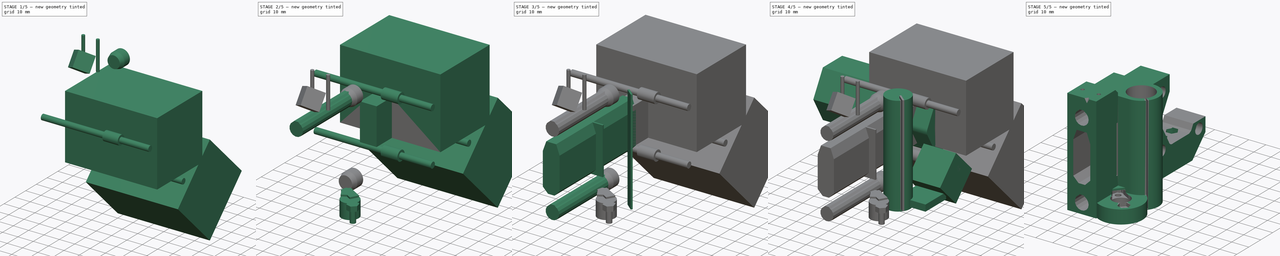
[diagram: build sequence overview — one tinted view per stage of 5, left to right]
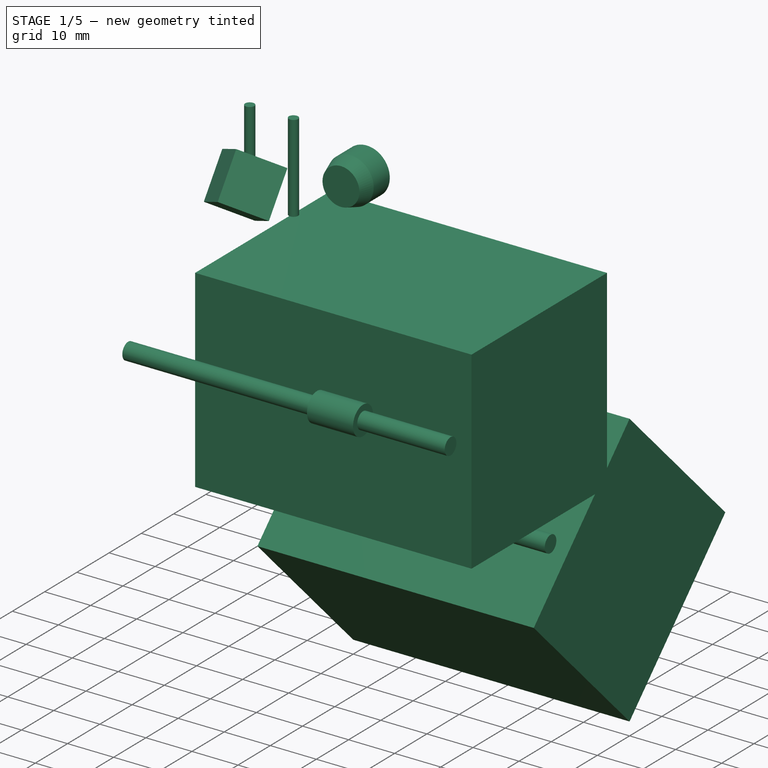
[diagram: stage 1 of 5 — iso view after this stage's code; geometry added in this stage tinted green]
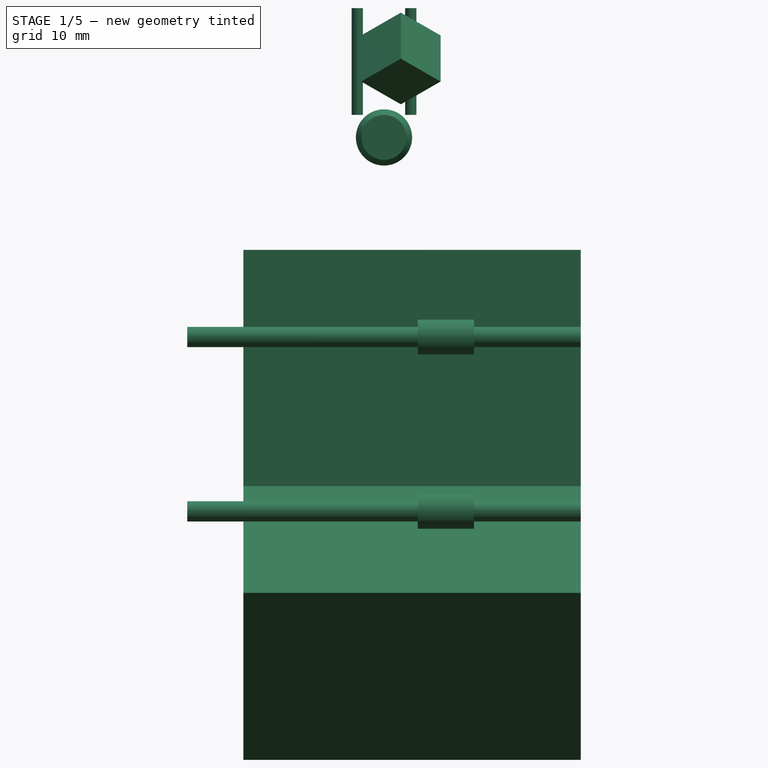
[diagram: stage 1 of 5 — front view after this stage's code; geometry added in this stage tinted green]
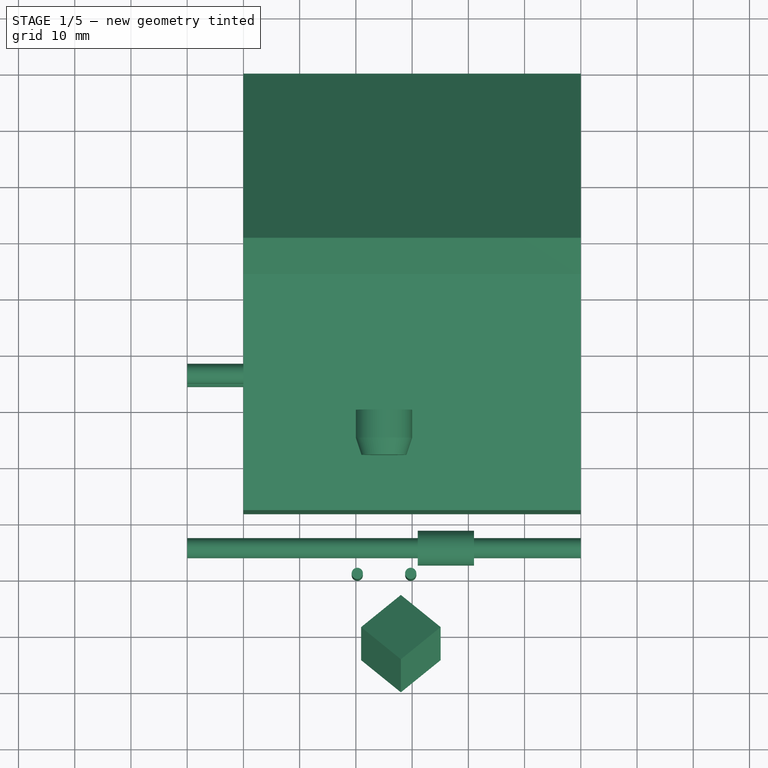
[diagram: stage 1 of 5 — top view after this stage's code; geometry added in this stage tinted green]
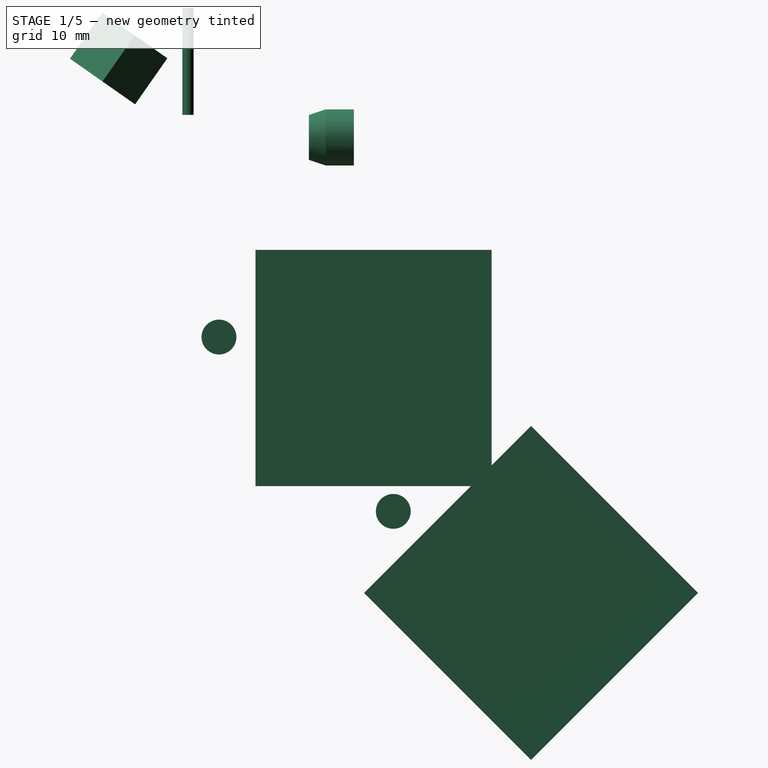
[diagram: stage 1 of 5 — right view after this stage's code; geometry added in this stage tinted green]
FCSTD DOCUMENT  (FreeCAD 0.19R)
Label: x-end-motor
License: All rights reserved
LicenseURL: http://en.wikipedia.org/wiki/All_rights_reserved
objects: Part::Box×26, Part::Cylinder×20, Part::Fuse×9, Part::MultiFuse×7, Part::Cut×6, Part::Prism×5, Sketcher::SketchObject×3, PartDesign::Pocket×3, Part::Cone×2, PartDesign::FeatureBase×1, PartDesign::Body×1
note: 86 computed .brp shape members not serialized (recipe doc carries the construction recipe); baked Part::Feature solids carry a one-line shape summary decoded from their .brp

FEATURE [Part::Cylinder] cylinder032
  Angle = 360
  AttacherType = Attacher::AttachEngine3D
  Height = 70
  Placement = pos=(20,-15.5,15.5) rot=(0.57735,0.57735,-0.57735;4.18879rad)
  Radius = 1.8
FEATURE [Part::Cylinder] cylinder033
  Angle = 360
  AttacherType = Attacher::AttachEngine3D
  Height = 10
  Placement = pos=(1,-15.5,15.5) rot=(0.57735,0.57735,-0.57735;4.18879rad)
  Radius = 3.1
FEATURE [Part::Cylinder] cylinder034
  Angle = 360
  AttacherType = Attacher::AttachEngine3D
  Height = 70
  Placement = pos=(20,15.5,-15.5) rot=(0.57735,0.57735,-0.57735;4.18879rad)
  Radius = 1.8
FEATURE [Part::Cylinder] cylinder035
  Angle = 360
  AttacherType = Attacher::AttachEngine3D
  Height = 10
  Placement = pos=(1,15.5,-15.5) rot=(0.57735,0.57735,-0.57735;4.18879rad)
  Radius = 3.1
FEATURE [Part::Cylinder] cylinder036
  Angle = 360
  AttacherType = Attacher::AttachEngine3D
  Height = 70
  Placement = pos=(20,15.5,15.5) rot=(0.57735,0.57735,-0.57735;4.18879rad)
  Radius = 1.8
FEATURE [Part::Cylinder] cylinder037
  Angle = 360
  AttacherType = Attacher::AttachEngine3D
  Height = 10
  Placement = pos=(1,15.5,15.5) rot=(0.57735,0.57735,-0.57735;4.18879rad)
  Radius = 3.1
FEATURE [Part::Box] cube049
  AttacherType = Attacher::AttachEngine3D
  Height = 42
  Length = 60
  Placement = pos=(-40,-9,-11) rot=(0,0,1;0rad)
  Width = 42
FEATURE [Part::Box] cube050
  AttacherType = Attacher::AttachEngine3D
  Height = 42
  Length = 60
  Placement = pos=(-40,40,-59.6985) rot=(1,0,0;0.785398rad)
  Width = 42
FEATURE [Part::Cylinder] cylinder038
  Angle = 360
  AttacherType = Attacher::AttachEngine3D
  Height = 19
  Placement = pos=(-4.75,0,0) rot=(0,0,1;0rad)
  Radius = 1
FEATURE [Part::Cylinder] cylinder039
  Angle = 360
  AttacherType = Attacher::AttachEngine3D
  Height = 19
  Placement = pos=(4.75,0,0) rot=(0,0,1;0rad)
  Radius = 1
FEATURE [Part::Fuse] Matrix_Union005
  Base = -> cylinder038
  Placement = pos=(-15,-21,55) rot=(0,0,1;0rad)
  Tool = -> cylinder039
FEATURE [Part::Box] cube051
  AttacherType = Attacher::AttachEngine3D
  Height = 10
  Length = 10
  Placement = pos=(-12,-42,65) rot=(-0.587481,0.243343,0.771784;0.985144rad)
  Width = 10
FEATURE [Part::Cylinder] cylinder040
  Angle = 360
  AttacherType = Attacher::AttachEngine3D
  Height = 5
  Placement = pos=(-15,8.5,6) rot=(1,0,0;1.5708rad)
  Radius = 5
FEATURE [Part::Cylinder] cylinder041
  Angle = 360
  AttacherType = Attacher::AttachEngine3D
  Height = 5
  Placement = pos=(-15,8.5,51) rot=(1,0,0;1.5708rad)
  Radius = 5
FEATURE [Part::Cone] cylinder042
  Angle = 360
  AttacherType = Attacher::AttachEngine3D
  Height = 3
  Placement = pos=(-15,3.5,6) rot=(1,0,0;1.5708rad)
  Radius1 = 5
  Radius2 = 4
FEATURE [Part::Cone] cylinder043
  Angle = 360
  AttacherType = Attacher::AttachEngine3D
  Height = 3
  Placement = pos=(-15,3.5,51) rot=(1,0,0;1.5708rad)
  Radius1 = 5
  Radius2 = 4
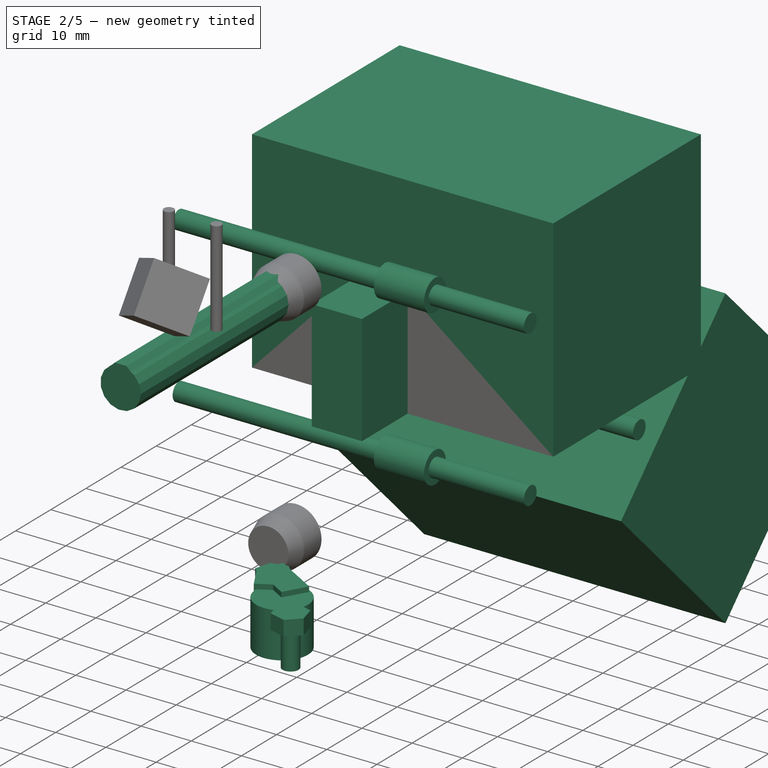
[diagram: stage 2 of 5 — iso view after this stage's code; geometry added in this stage tinted green]
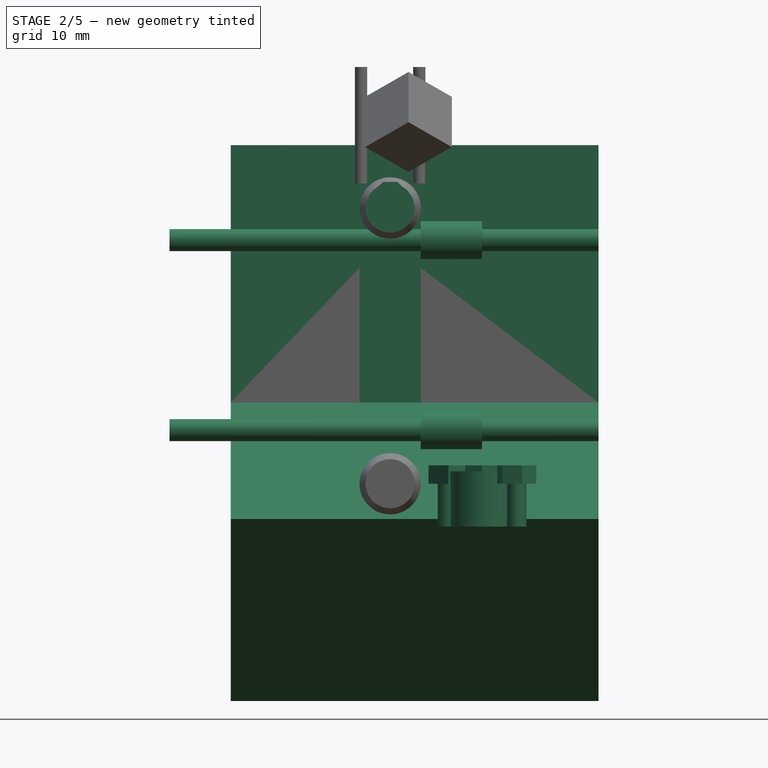
[diagram: stage 2 of 5 — front view after this stage's code; geometry added in this stage tinted green]
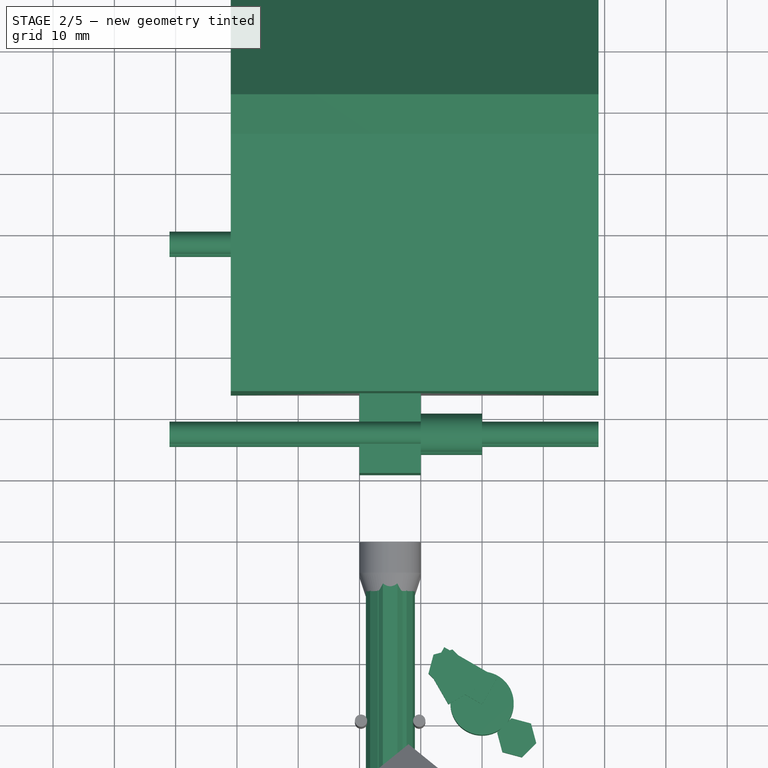
[diagram: stage 2 of 5 — top view after this stage's code; geometry added in this stage tinted green]
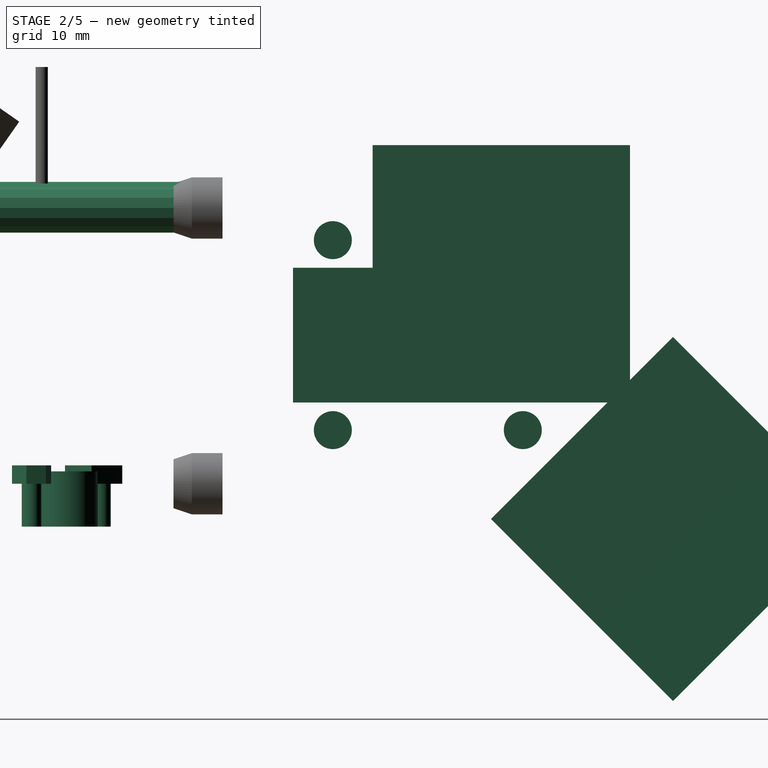
[diagram: stage 2 of 5 — right view after this stage's code; geometry added in this stage tinted green]
FEATURE [Part::Prism] prism007
  AttacherType = Attacher::AttachEngine3D
  Circumradius = 4.03601
  FirstAngle = 0
  Height = 50
  Polygon = 15
  SecondAngle = 0
FEATURE [Part::Box] cube044
  AttacherType = Attacher::AttachEngine3D
  Height = 50
  Length = 3.85
  Placement = pos=(0,-5.42411,0) rot=(0,0,1;0.785398rad)
  Width = 3.85
FEATURE [Part::Box] cube045
  AttacherType = Attacher::AttachEngine3D
  Height = 50
  Length = 7.7
  Placement = pos=(-3.85,-8.1,0) rot=(0,0,1;0rad)
  Width = 3.85
FEATURE [Part::Cut] difference010
  Base = -> cube044
  Tool = -> cube045
FEATURE [Part::Fuse] Group013
  Base = -> prism007
  Placement = pos=(-15,-41.5,51) rot=(-1,0,0;1.5708rad)
  Tool = -> difference010
FEATURE [Part::Cylinder] cylinder027
  Angle = 360
  AttacherType = Attacher::AttachEngine3D
  Height = 9.01
  Placement = pos=(0,-17,-1) rot=(0,0,1;0rad)
  Radius = 5.16233
FEATURE [Part::Cylinder] cylinder028
  Angle = 360
  AttacherType = Attacher::AttachEngine3D
  Height = 10
  Placement = pos=(5.65685,-22.6569,-1) rot=(0,0,1;3.92699rad)
  Radius = 1.6
FEATURE [Part::Cylinder] cylinder029
  Angle = 360
  AttacherType = Attacher::AttachEngine3D
  Height = 10
  Placement = pos=(-5.65685,-11.3431,-1) rot=(0,0,1;3.92699rad)
  Radius = 1.6
FEATURE [Part::Prism] prism008
  AttacherType = Attacher::AttachEngine3D
  Circumradius = 3.3
  FirstAngle = 0
  Height = 3
  Placement = pos=(5.65685,-22.6569,6) rot=(0,0,1;3.92699rad)
  Polygon = 6
  SecondAngle = 0
FEATURE [Part::Prism] prism009
  AttacherType = Attacher::AttachEngine3D
  Circumradius = 3.2
  FirstAngle = 0
  Height = 3
  Placement = pos=(-5.65685,-11.3431,6) rot=(0,0,-1;1.8326rad)
  Polygon = 6
  SecondAngle = 0
FEATURE [Part::Box] cube046
  AttacherType = Attacher::AttachEngine3D
  Height = 3
  Length = 5
  Placement = pos=(-5.5,-17.2,6) rot=(0,0,1;0.523599rad)
  Width = 5
FEATURE [Part::Box] cube047
  AttacherType = Attacher::AttachEngine3D
  Height = 3
  Length = 5
  Placement = pos=(0,-17.2,6) rot=(0,0,1;1.0472rad)
  Width = 10
FEATURE [Part::Box] cube048
  AttacherType = Attacher::AttachEngine3D
  Height = 22
  Length = 10
  Placement = pos=(-19,-22,-11) rot=(0,0,1;0rad)
  Width = 46
FEATURE [Part::Cylinder] cylinder030
  Angle = 360
  AttacherType = Attacher::AttachEngine3D
  Height = 70
  Placement = pos=(20,-15.5,-15.5) rot=(0.57735,0.57735,-0.57735;4.18879rad)
  Radius = 1.8
FEATURE [Part::Cylinder] cylinder031
  Angle = 360
  AttacherType = Attacher::AttachEngine3D
  Height = 10
  Placement = pos=(1,-15.5,-15.5) rot=(0.57735,0.57735,-0.57735;4.18879rad)
  Radius = 3.1
FEATURE [Part::MultiFuse] Matrix_Union004
  Placement = pos=(-1,42,30.25) rot=(0,0,1;0rad)
  Shapes = -> [cube048,cylinder030,cylinder031,cylinder032,cylinder033,cylinder034,cylinder035,cylinder036,cylinder037,cube049,cube050]
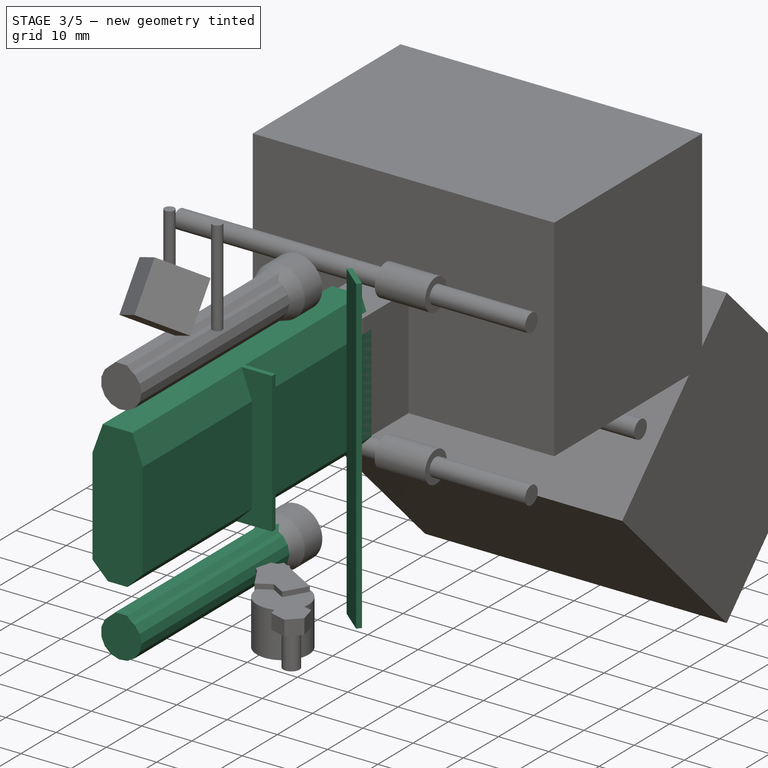
[diagram: stage 3 of 5 — iso view after this stage's code; geometry added in this stage tinted green]
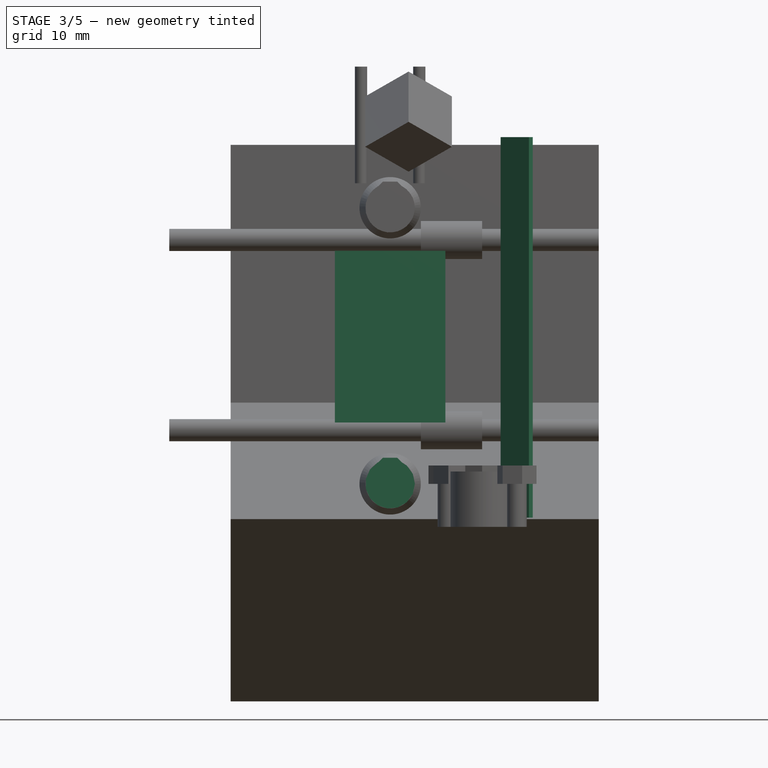
[diagram: stage 3 of 5 — front view after this stage's code; geometry added in this stage tinted green]
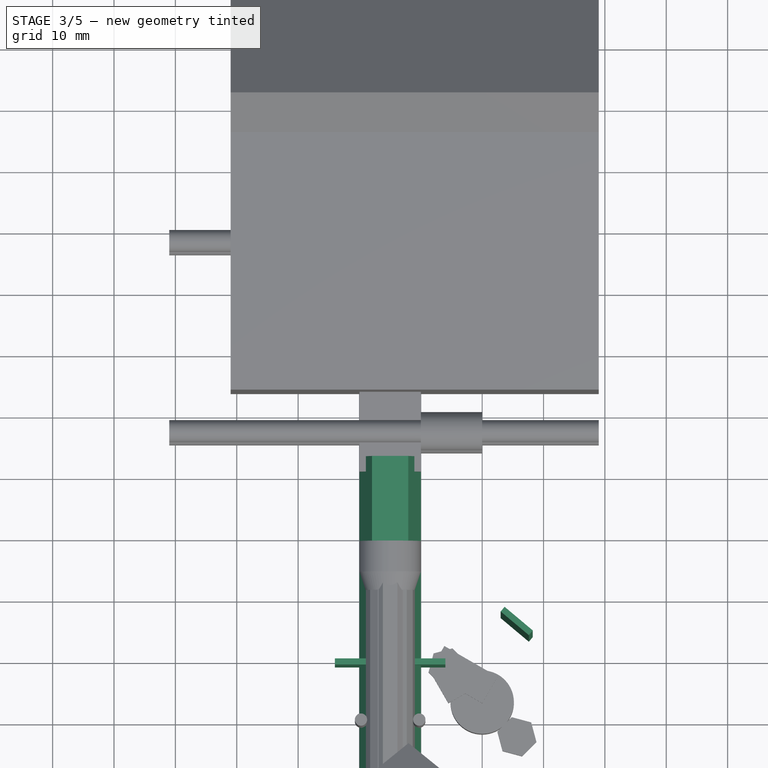
[diagram: stage 3 of 5 — top view after this stage's code; geometry added in this stage tinted green]
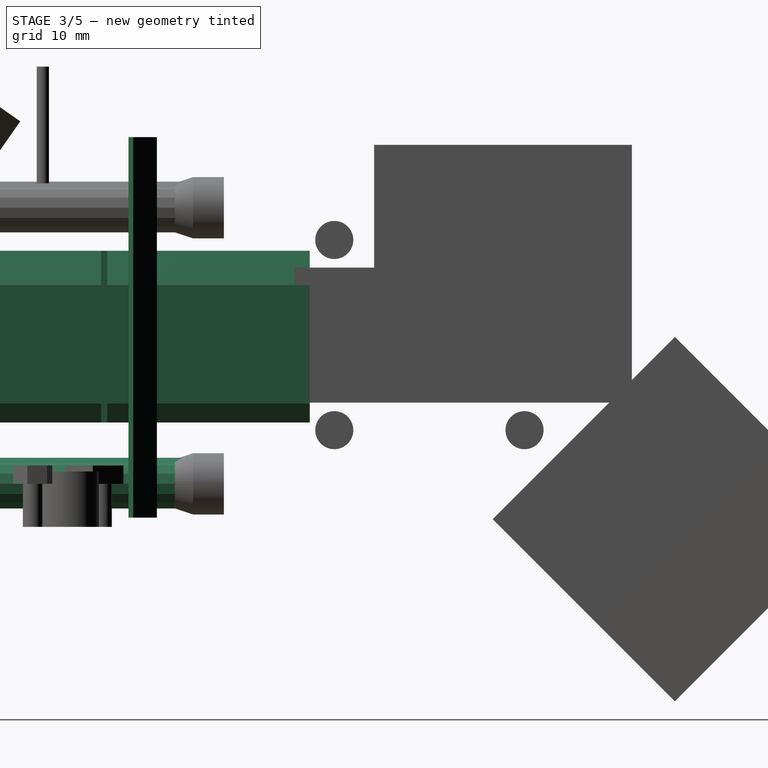
[diagram: stage 3 of 5 — right view after this stage's code; geometry added in this stage tinted green]
FEATURE [Part::Box] cube035
  AttacherType = Attacher::AttachEngine3D
  Height = 62
  Length = 6
  Placement = pos=(3.0109,-3.17915,0.5) rot=(0,0,-1;0.698132rad)
  Width = 1
FEATURE [Part::Box] cube036
  AttacherType = Attacher::AttachEngine3D
  Height = 28
  Length = 18
  Placement = pos=(-23,-11.5,16) rot=(0,0,1;0rad)
  Width = 1
FEATURE [Part::Box] cube037
  AttacherType = Attacher::AttachEngine3D
  Height = 28
  Length = 10
  Placement = pos=(-19,-42.5,16) rot=(0,0,1;0rad)
  Width = 65
FEATURE [Part::Box] cube038
  AttacherType = Attacher::AttachEngine3D
  Height = 28
  Length = 10
  Placement = pos=(-28.4867,-42.5,41.5544) rot=(0,1,0;0.349066rad)
  Width = 65
FEATURE [Part::Box] cube039
  AttacherType = Attacher::AttachEngine3D
  Height = 28
  Length = 10
  Placement = pos=(-8.91018,-42.5,38.1342) rot=(0,-1,0;0.349066rad)
  Width = 65
FEATURE [Part::Box] cube040
  AttacherType = Attacher::AttachEngine3D
  Height = 28
  Length = 10
  Placement = pos=(-27.435,-42.5,0.636039) rot=(0,1,0;0.785398rad)
  Width = 65
FEATURE [Part::Box] cube041
  AttacherType = Attacher::AttachEngine3D
  Height = 28
  Length = 10
  Placement = pos=(-7.63604,-42.5,-6.43503) rot=(0,-1,0;0.785398rad)
  Width = 65
FEATURE [Part::MultiFuse] union008
  Shapes = -> [cube038,cube039,cube040,cube041]
FEATURE [Part::Cut] difference008
  Base = -> cube037
  Tool = -> union008
FEATURE [Part::Fuse] Matrix_Union003
  Base = -> cube036
  Placement = pos=(-1,0,0) rot=(0,0,1;0rad)
  Tool = -> difference008
FEATURE [Part::Prism] prism006
  AttacherType = Attacher::AttachEngine3D
  Circumradius = 4.03601
  FirstAngle = 0
  Height = 50
  Polygon = 15
  SecondAngle = 0
FEATURE [Part::Box] cube042
  AttacherType = Attacher::AttachEngine3D
  Height = 50
  Length = 3.85
  Placement = pos=(0,-5.42411,0) rot=(0,0,1;0.785398rad)
  Width = 3.85
FEATURE [Part::Box] cube043
  AttacherType = Attacher::AttachEngine3D
  Height = 50
  Length = 7.7
  Placement = pos=(-3.85,-8.1,0) rot=(0,0,1;0rad)
  Width = 3.85
FEATURE [Part::Cut] difference009
  Base = -> cube042
  Tool = -> cube043
FEATURE [Part::Fuse] Group012
  Base = -> prism006
  Placement = pos=(-15,-41.5,6) rot=(-1,0,0;1.5708rad)
  Tool = -> difference009
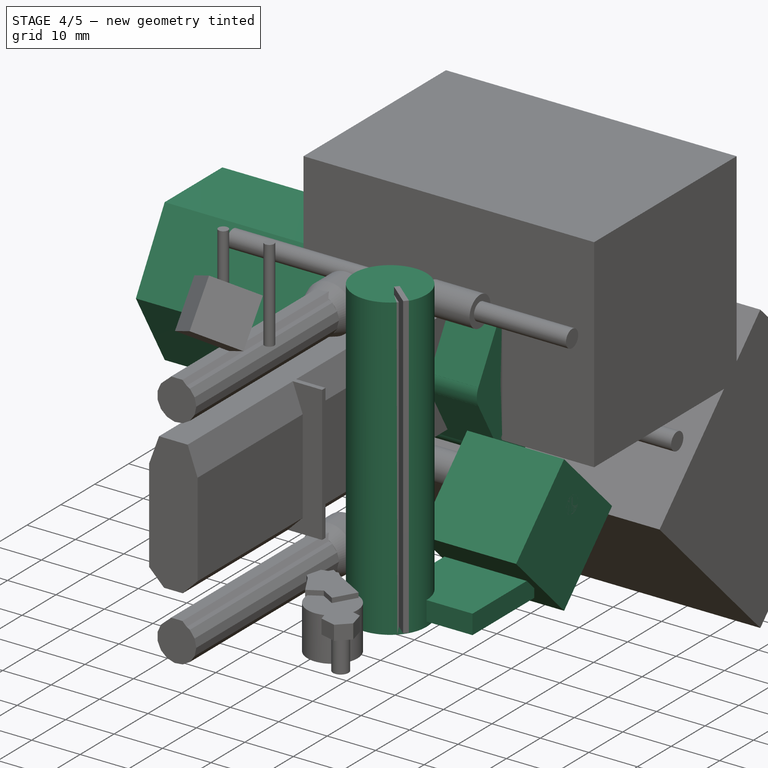
[diagram: stage 4 of 5 — iso view after this stage's code; geometry added in this stage tinted green]
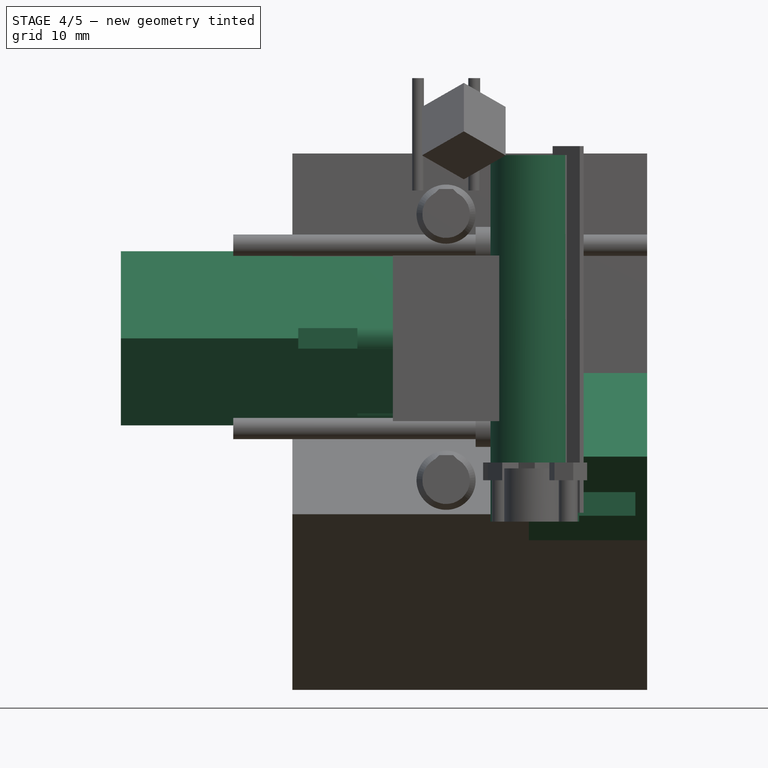
[diagram: stage 4 of 5 — front view after this stage's code; geometry added in this stage tinted green]
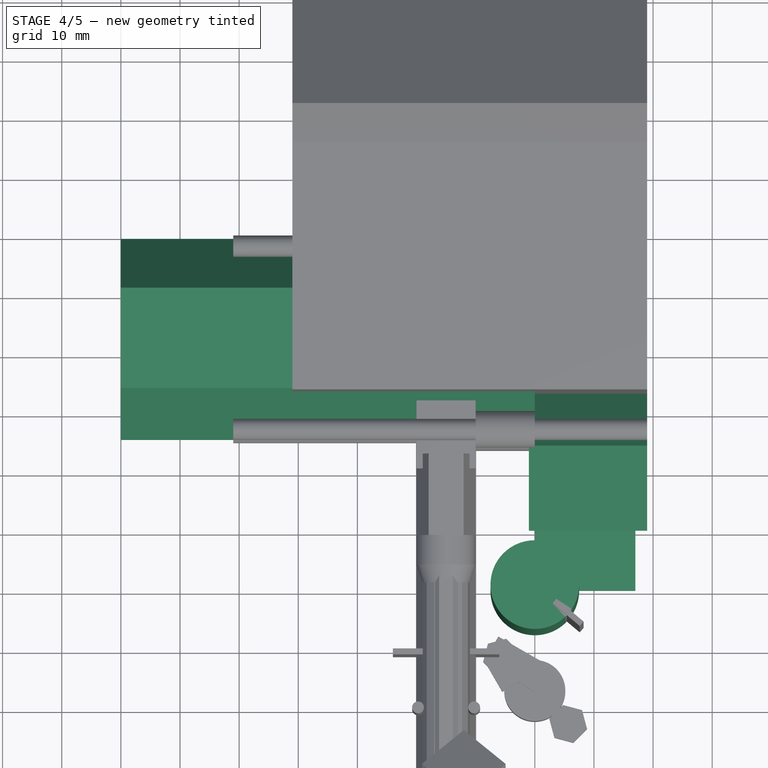
[diagram: stage 4 of 5 — top view after this stage's code; geometry added in this stage tinted green]
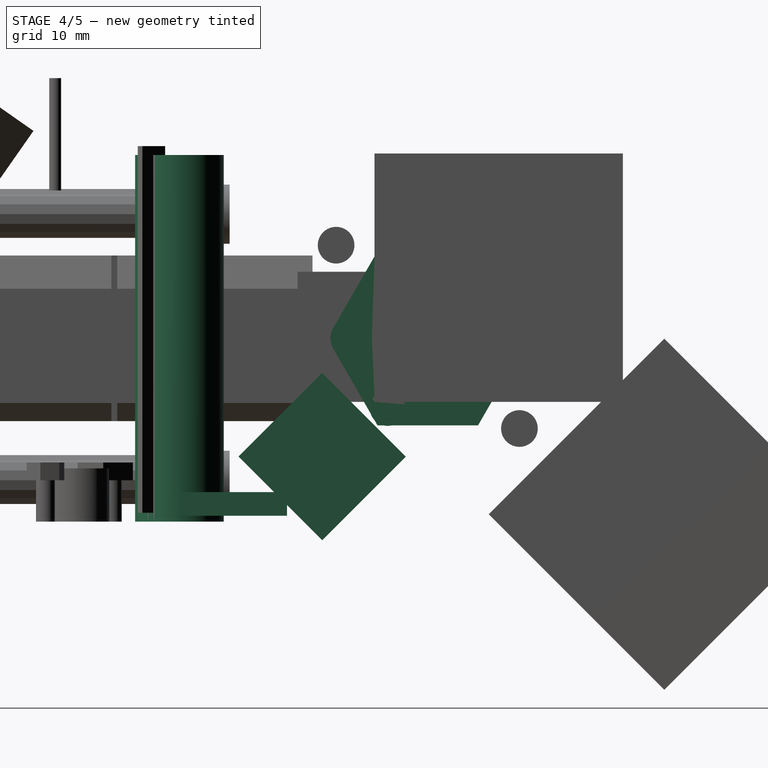
[diagram: stage 4 of 5 — right view after this stage's code; geometry added in this stage tinted green]
FEATURE [Part::Box] cube030
  AttacherType = Attacher::AttachEngine3D
  Height = 4
  Length = 17
  Width = 18.2
FEATURE [Part::Box] cube031
  AttacherType = Attacher::AttachEngine3D
  Height = 20
  Length = 20
  Placement = pos=(-1,10,10) rot=(-1,0,0;0.785398rad)
  Width = 20
FEATURE [Part::Prism] prism005
  AttacherType = Attacher::AttachEngine3D
  Circumradius = 17
  FirstAngle = 0
  Height = 70
  Placement = pos=(0,42,30) rot=(0.57735,0.57735,-0.57735;4.18879rad)
  Polygon = 6
  SecondAngle = 0
FEATURE [Part::Box] cube032
  AttacherType = Attacher::AttachEngine3D
  Height = 10
  Length = 60
  Placement = pos=(-40,24,25) rot=(0,0,1;0rad)
  Width = 2
FEATURE [Part::Box] cube033
  AttacherType = Attacher::AttachEngine3D
  Height = 10
  Length = 60
  Placement = pos=(-40,37.8301,11.134) rot=(1,0,0;1.0472rad)
  Width = 2
FEATURE [Part::Box] cube034
  AttacherType = Attacher::AttachEngine3D
  Height = 10
  Length = 60
  Placement = pos=(-40,45.1699,12.866) rot=(-1,0,0;1.0472rad)
  Width = 2
FEATURE [Part::MultiFuse] union006
  Shapes = -> [cube032,cube033,cube034]
FEATURE [Part::Cut] difference007
  Base = -> prism005
  Tool = -> union006
FEATURE [Part::Cylinder] cylinder024
  Angle = 360
  AttacherType = Attacher::AttachEngine3D
  Height = 30
  Placement = pos=(-30,35.2,18.2) rot=(0,1,0;1.5708rad)
  Radius = 3
FEATURE [Part::Cylinder] cylinder025
  Angle = 360
  AttacherType = Attacher::AttachEngine3D
  Height = 30
  Placement = pos=(-30,29.05,30) rot=(0,1,0;1.5708rad)
  Radius = 3.5
FEATURE [Part::MultiFuse] union007
  Shapes = -> [difference007,cylinder024,cylinder025]
FEATURE [Part::Cylinder] cylinder026
  Angle = 360
  AttacherType = Attacher::AttachEngine3D
  Height = 62
  Placement = pos=(0,0,-1) rot=(0,0,1;0rad)
  Radius = 7.49334
FEATURE [Part::Fuse] Group011
  Base = -> cylinder026
  Tool = -> cube035
FEATURE [Part::MultiFuse] Group014
  Shapes = -> [Group011,Matrix_Union003,Group012,Group013,cylinder027,cylinder028,cylinder029,prism008,prism009,cube046,cube047]
FEATURE [Part::Fuse] Group015
  Base = -> Group014
  Tool = -> Matrix_Union004
FEATURE [Part::MultiFuse] union009
  Shapes = -> [union007,Group015,Matrix_Union005,cube051,cylinder040,cylinder041,cylinder042,cylinder043]
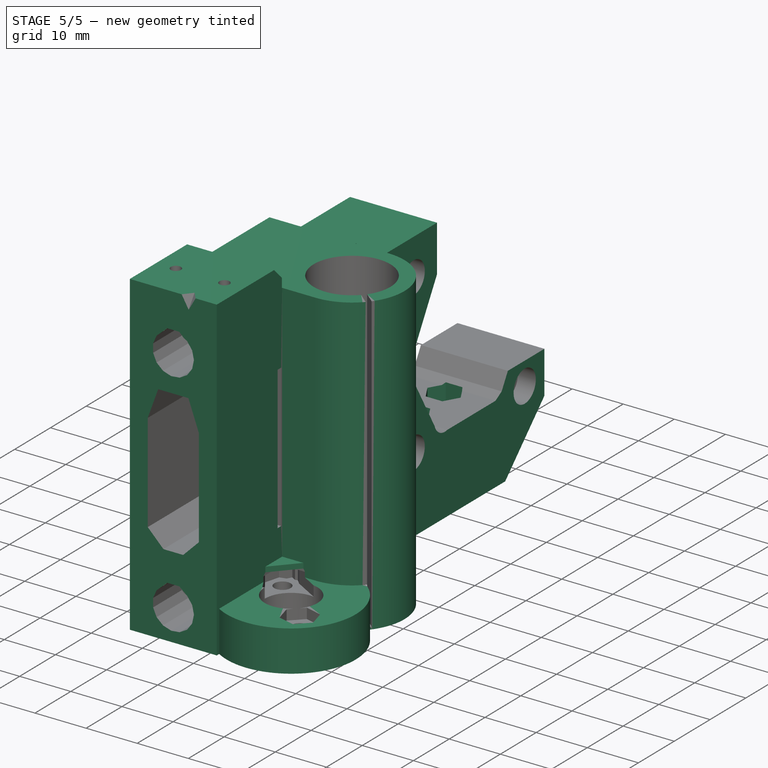
[diagram: stage 5 of 5 — iso view after this stage's code; geometry added in this stage tinted green]
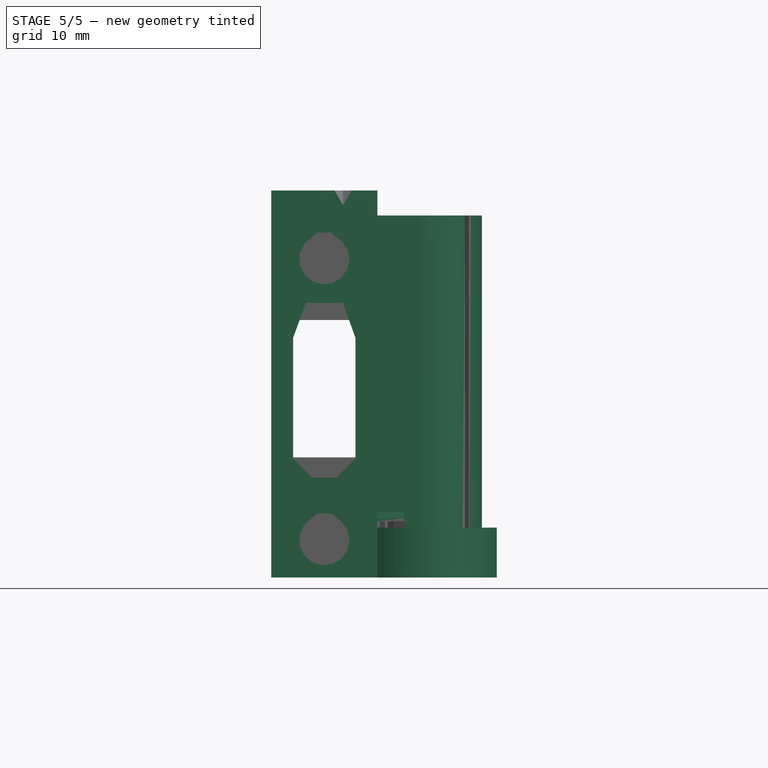
[diagram: stage 5 of 5 — front view after this stage's code; geometry added in this stage tinted green]
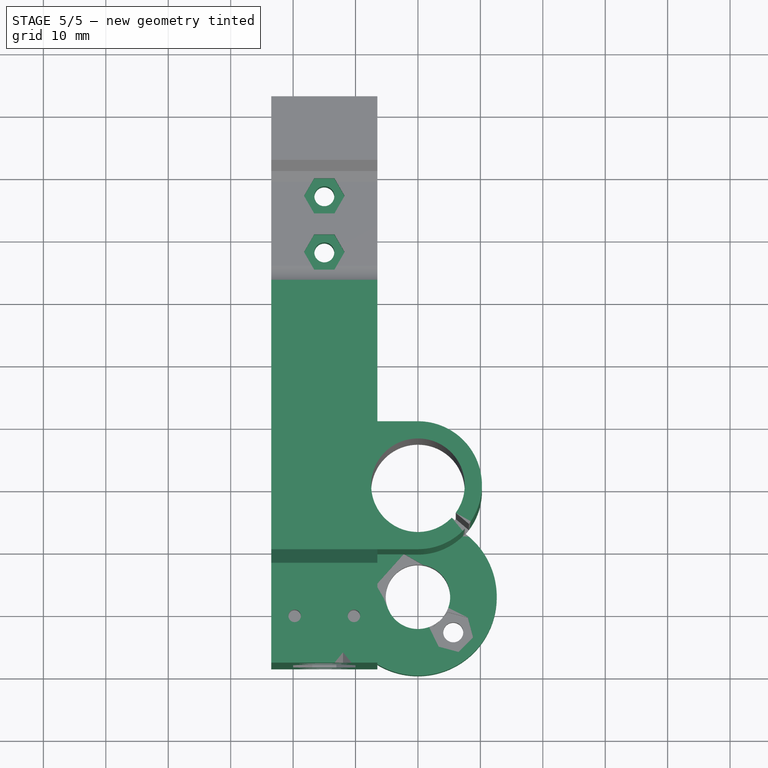
[diagram: stage 5 of 5 — top view after this stage's code; geometry added in this stage tinted green]
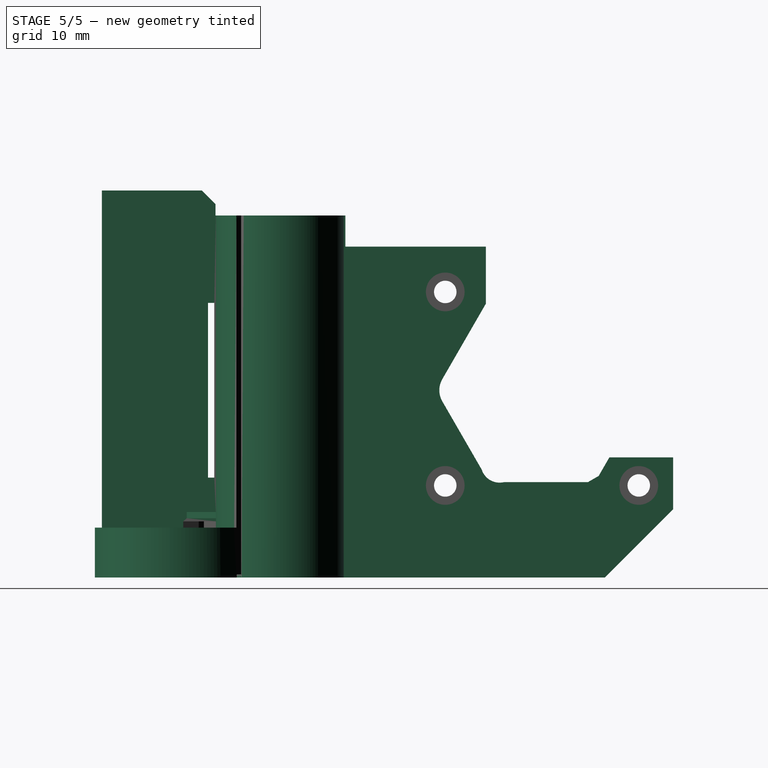
[diagram: stage 5 of 5 — right view after this stage's code; geometry added in this stage tinted green]
FEATURE [Part::Box] cube026
  AttacherType = Attacher::AttachEngine3D
  Height = 58
  Length = 17
  Placement = pos=(-23.5,-28.5,0) rot=(0,0,1;0rad)
  Width = 39
FEATURE [Part::Box] cube027
  AttacherType = Attacher::AttachEngine3D
  Height = 58
  Length = 14.25
  Placement = pos=(-14.25,-10.25,0) rot=(0,0,1;0rad)
  Width = 20.5
FEATURE [Part::Cylinder] cylinder022
  Angle = 360
  AttacherType = Attacher::AttachEngine3D
  Height = 58
  Radius = 10.25
FEATURE [Part::Fuse] Group008
  Base = -> cube027
  Tool = -> cylinder022
FEATURE [Part::Cylinder] cylinder023
  Angle = 360
  AttacherType = Attacher::AttachEngine3D
  Height = 8
  Placement = pos=(0,-17,0) rot=(0,0,1;0rad)
  Radius = 12.6247
FEATURE [Part::Box] cube028
  AttacherType = Attacher::AttachEngine3D
  Height = 1
  Length = 10
  Placement = pos=(-7.46897,-15.9937,9.5) rot=(0,0,1;0.841249rad)
  Width = 5
FEATURE [Part::MultiFuse] Group009
  Shapes = -> [cube026,Group008,cylinder023,cube028]
FEATURE [Part::Box] cube029
  AttacherType = Attacher::AttachEngine3D
  Height = 53
  Length = 17
  Placement = pos=(-23.5,9,0) rot=(0,0,1;0rad)
  Width = 54
FEATURE [Part::Fuse] Group010
  Base = -> Group009
  Tool = -> cube029
FEATURE [Part::Cut] difference006
  Base = -> cube030
  Placement = pos=(-23.5,-28.5,58) rot=(0,0,1;0rad)
  Tool = -> cube031
FEATURE [Part::Fuse] union005
  Base = -> Group010
  Tool = -> difference006
FEATURE [Part::Cut] difference011
  Base = -> union005
  Refine = true
  Tool = -> union009
FEATURE [PartDesign::FeatureBase] BaseFeature
  BaseFeature = -> difference011
FEATURE [Sketcher::SketchObject] Sketch
  ExternalGeometry = -> [BaseFeature]
  FullyConstrained = false
  MapMode = 5
  Placement = pos=(0,-1.5e-15,15.2776) rot=(0,0,1;0rad)
  Support = -> [BaseFeature]
  sketch-geometry (4):
    g0: Circle CenterX=-15 CenterY=47.1123 CenterZ=0 NormalX=0 NormalY=0 NormalZ=1 AngleXU=0 Radius=1.6
    g1: Circle CenterX=-15 CenterY=38.1123 CenterZ=0 NormalX=0 NormalY=0 NormalZ=1 AngleXU=0 Radius=1.6
    g2: LineSegment StartX=-15 StartY=49.3468 StartZ=0 EndX=-15 EndY=35.8778 EndZ=0
    g3: LineSegment StartX=-23.5 StartY=42.6123 StartZ=0 EndX=-6.5 EndY=42.6123 EndZ=0
  constraints (11):
    c: Radius(g1) = 1.6
    c: Equal(g1,g0)
    c: Distance(g0,g1) = 9
    c: PointOnObject(g2,g-5)
    c: PointOnObject(g2,g-6)
    c: Symmetric(g-6,g-6,g2)
    c: PointOnObject(g1,g2)
    c: PointOnObject(g3,g-3)
    c: PointOnObject(g3,g-4)
    c: Symmetric(g-6,g-5,g3)
    c: Symmetric(g0,g1,g3)
FEATURE [PartDesign::Pocket] Pocket
  BaseFeature = -> BaseFeature
  Length = 5
  Length2 = 100
  Profile = -> Sketch
  Type = 1
FEATURE [Sketcher::SketchObject] Sketch001
  ExternalGeometry = -> [Pocket]
  FullyConstrained = false
  MapMode = 5
  Placement = pos=(0,-1.5e-15,15.2776) rot=(0,0,1;0rad)
  Support = -> [Pocket]
  sketch-geometry (14):
    g0: LineSegment StartX=-11.75 StartY=47.1123 StartZ=0 EndX=-13.375 EndY=49.9269 EndZ=0
    g1: LineSegment StartX=-13.375 StartY=49.9269 StartZ=0 EndX=-16.625 EndY=49.9269 EndZ=0
    g2: LineSegment StartX=-16.625 StartY=49.9269 StartZ=0 EndX=-18.25 EndY=47.1123 EndZ=0
    g3: LineSegment StartX=-18.25 StartY=47.1123 StartZ=0 EndX=-16.625 EndY=44.2977 EndZ=0
    g4: LineSegment StartX=-16.625 StartY=44.2977 StartZ=0 EndX=-13.375 EndY=44.2977 EndZ=0
    g5: LineSegment StartX=-13.375 StartY=44.2977 StartZ=0 EndX=-11.75 EndY=47.1123 EndZ=0
    g6: Circle CenterX=-15 CenterY=47.1123 CenterZ=0 NormalX=0 NormalY=0 NormalZ=1 AngleXU=0 Radius=3.25
    g7: LineSegment StartX=-11.75 StartY=38.1123 StartZ=0 EndX=-13.375 EndY=40.9269 EndZ=0
    g8: LineSegment StartX=-13.375 StartY=40.9269 StartZ=0 EndX=-16.625 EndY=40.9269 EndZ=0
    g9: LineSegment StartX=-16.625 StartY=40.9269 StartZ=0 EndX=-18.25 EndY=38.1123 EndZ=0
    g10: LineSegment StartX=-18.25 StartY=38.1123 StartZ=0 EndX=-16.625 EndY=35.2977 EndZ=0
    g11: LineSegment StartX=-16.625 StartY=35.2977 StartZ=0 EndX=-13.375 EndY=35.2977 EndZ=0
    g12: LineSegment StartX=-13.375 StartY=35.2977 StartZ=0 EndX=-11.75 EndY=38.1123 EndZ=0
    g13: Circle CenterX=-15 CenterY=38.1123 CenterZ=0 NormalX=0 NormalY=0 NormalZ=1 AngleXU=0 Radius=3.25
  constraints (32):
    c: Coincident(g0,g1)
    c: Coincident(g1,g2)
    c: Coincident(g2,g3)
    c: Coincident(g3,g4)
    c: Coincident(g4,g5)
    c: Coincident(g5,g0)
    c: Equal(g0, g1-g5) x5
    c: PointOnObject(g0,g6)
    c: PointOnObject(g1,g6)
    c: PointOnObject(g2,g6)
    c: PointOnObject(g3,g6)
    c: PointOnObject(g4,g6)
    c: PointOnObject(g5,g6)
    c: Coincident(g6,g-3)
    c: Coincident(g7,g8)
    c: Coincident(g8,g9)
    c: Coincident(g9,g10)
    c: Coincident(g10,g11)
    c: Coincident(g11,g12)
    c: Coincident(g12,g7)
    c: Equal(g7, g8-g12) x5
    c: PointOnObject(g7,g13)
    c: PointOnObject(g8,g13)
    c: PointOnObject(g9,g13)
    c: PointOnObject(g10,g13)
    c: PointOnObject(g11,g13)
    c: PointOnObject(g12,g13)
    c: Coincident(g13,g-4)
    c: Equal(g6,g13)
    c: Horizontal(g4)
    c: Horizontal(g8)
    c: Radius(g6) = 3.25
FEATURE [PartDesign::Pocket] Pocket001
  BaseFeature = -> Pocket
  Length = 7
  Length2 = 100
  Midplane = true
  Profile = -> Sketch001
  Type = 0
FEATURE [Sketcher::SketchObject] Sketch002
  ExternalGeometry = -> [Pocket001]
  FullyConstrained = false
  MapMode = 5
  Placement = pos=(-6.5,0,0) rot=(0.57735,0.57735,0.57735;2.0944rad)
  Support = -> [Pocket001]
  sketch-geometry (3):
    g0: LineSegment StartX=52.3015 StartY=0.25 StartZ=0 EndX=51.6802 EndY=-0.371282 EndZ=0
    g1: LineSegment StartX=51.6802 StartY=-0.371282 StartZ=0 EndX=54.1196 EndY=-0.371282 EndZ=0
    g2: LineSegment StartX=54.1196 StartY=-0.371282 StartZ=0 EndX=52.3015 EndY=0.25 EndZ=0
  constraints (6):
    c: Coincident(g-3,g0)
    c: Coincident(g0,g1)
    c: Horizontal(g1)
    c: Coincident(g1,g2)
    c: Coincident(g2,g0)
    c: Parallel(g0,g-3)
FEATURE [PartDesign::Pocket] Pocket002
  BaseFeature = -> Pocket001
  Length = 5
  Length2 = 100
  Profile = -> Sketch002
  Refine = true
  Type = 1
FEATURE [PartDesign::Body] Body
  BaseFeature = -> difference011
  Group = -> [BaseFeature,Sketch,Pocket,Sketch001,Pocket001,Sketch002,Pocket002]
  Origin = -> Origin
  Tip = -> Pocket002
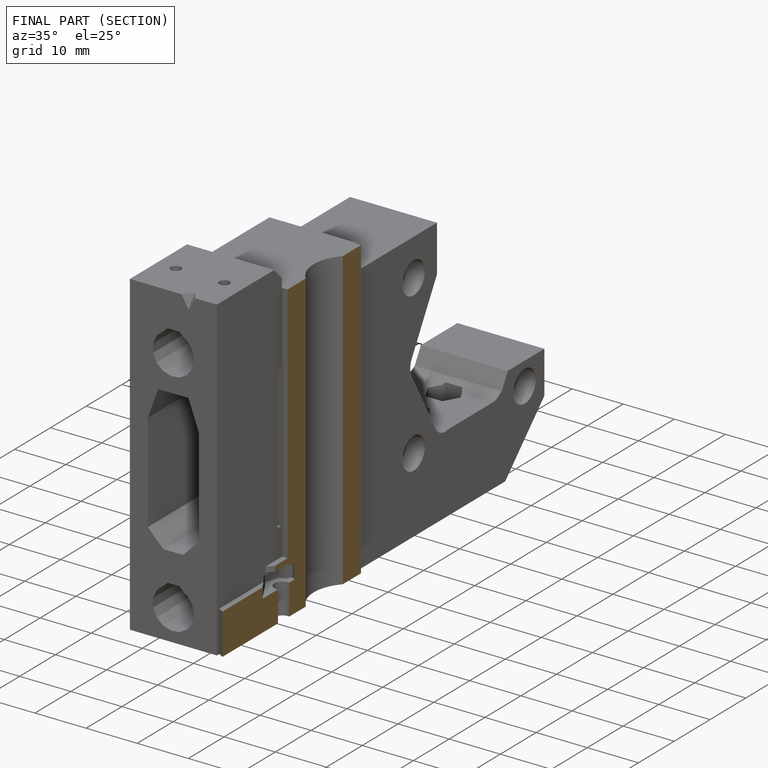
[diagram: finished part — half-section view (interior)]
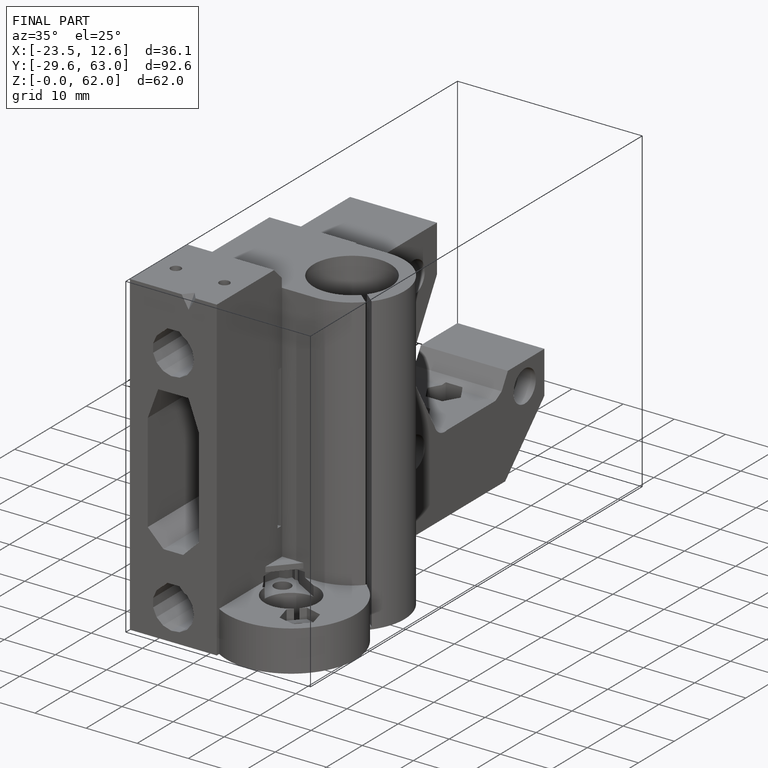
[diagram: finished part — iso view with bounding-box wireframe]
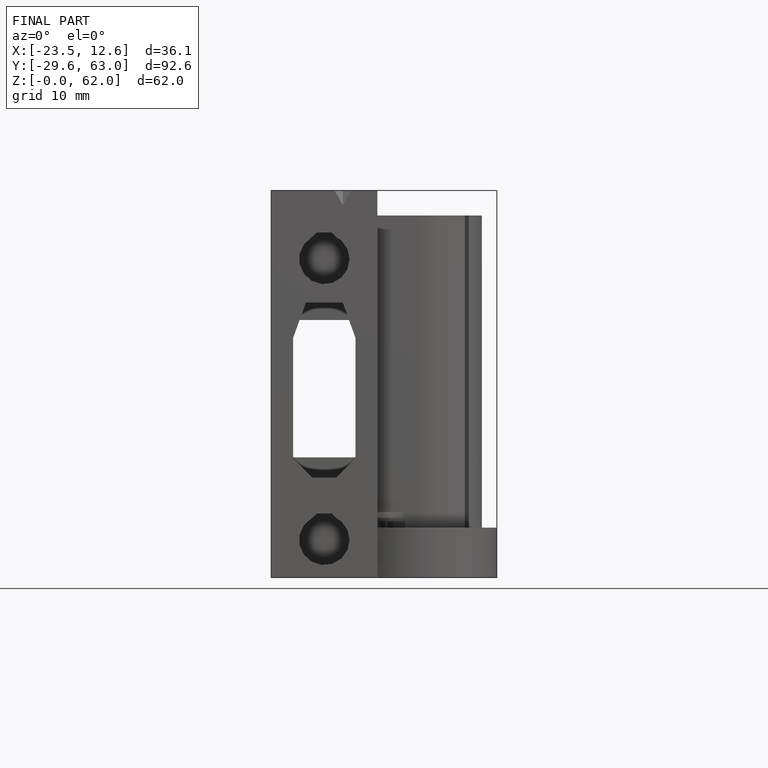
[diagram: finished part — front view with bounding-box wireframe]
